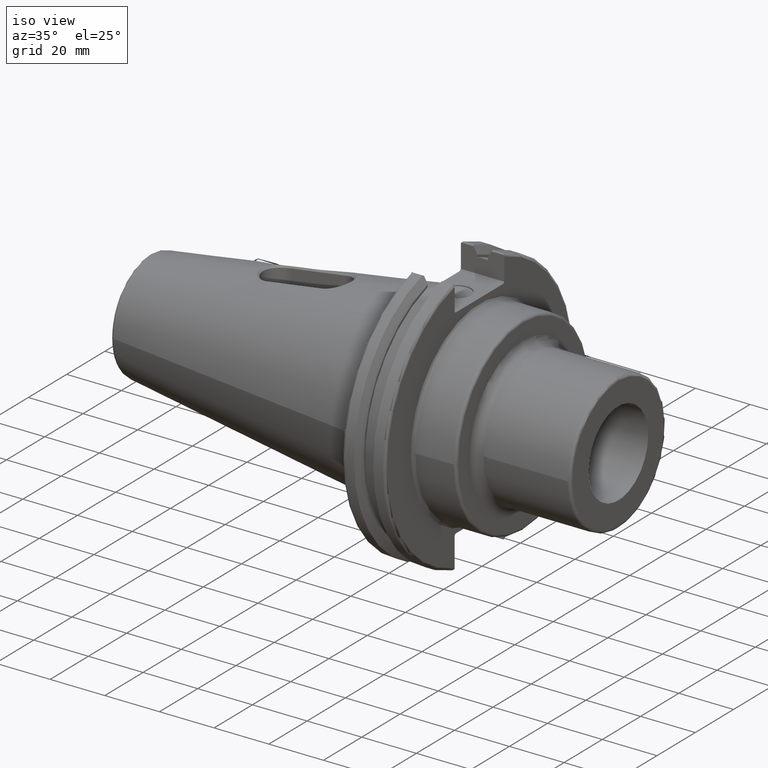
[diagram: clean part render]
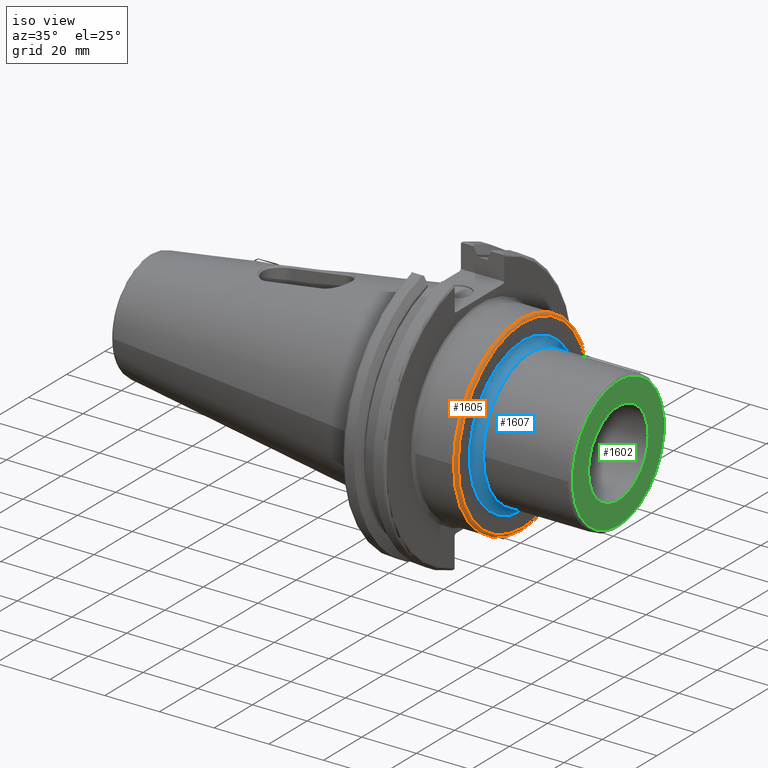
[diagram: same view with three faces highlighted in distinct colors, each labeled with its STEP entity id]
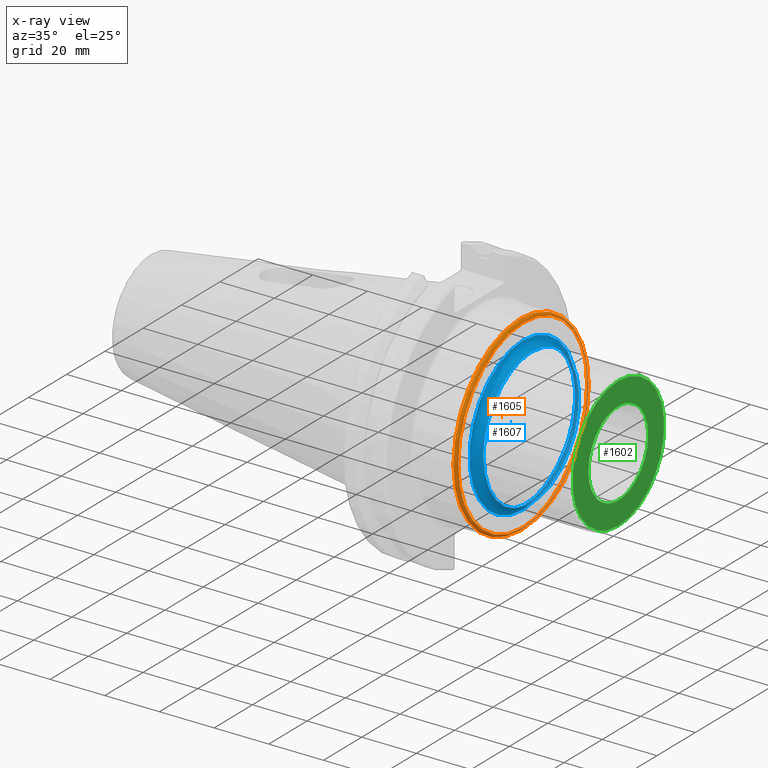
[diagram: x-ray of the same camera — body ghosted, the three highlighted faces saturated]
A machine part, iso view with three faces highlighted in distinct colors.
The next image is the same camera in x-ray (body ghosted, the three faces saturated) — at least one of them is partly hidden behind the body in this view.
Their STEP definitions:

[orange] entity #1605 — the highlighted toroidal blend (fillet) surface has major radius 33.925 mm and minor (blend) radius 1 mm.
#17=TOROIDAL_SURFACE('',#1728,33.925,1.);
#57=CIRCLE('',#1726,34.925);
#58=CIRCLE('',#1727,34.925);
#59=CIRCLE('',#1729,33.925);
#60=CIRCLE('',#1730,1.);
#219=FACE_OUTER_BOUND('',#313,.T.);
#313=EDGE_LOOP('',(#1258,#1259,#1260,#1261,#1262));
#720=VERTEX_POINT('',#3159);
#721=VERTEX_POINT('',#3160);
#722=VERTEX_POINT('',#3165);
#918=EDGE_CURVE('',#720,#721,#57,.T.);
#920=EDGE_CURVE('',#721,#720,#58,.T.);
#921=EDGE_CURVE('',#722,#722,#59,.T.);
#922=EDGE_CURVE('',#722,#721,#60,.T.);
#1258=ORIENTED_EDGE('',*,*,#921,.T.);
#1259=ORIENTED_EDGE('',*,*,#922,.T.);
#1260=ORIENTED_EDGE('',*,*,#920,.T.);
#1261=ORIENTED_EDGE('',*,*,#918,.T.);
#1262=ORIENTED_EDGE('',*,*,#922,.F.);
#1605=ADVANCED_FACE('',(#219),#17,.T.);
#1726=AXIS2_PLACEMENT_3D('',#3161,#1953,#1954);
#1727=AXIS2_PLACEMENT_3D('',#3163,#1956,#1957);
#1728=AXIS2_PLACEMENT_3D('',#3164,#1958,#1959);
#1729=AXIS2_PLACEMENT_3D('',#3166,#1960,#1961);
#1730=AXIS2_PLACEMENT_3D('',#3167,#1962,#1963);
#1953=DIRECTION('center_axis',(1.,0.,0.));
#1954=DIRECTION('ref_axis',(0.,-1.,1.83697019872103E-16));
#1956=DIRECTION('center_axis',(1.,0.,0.));
#1957=DIRECTION('ref_axis',(0.,-1.,1.83697019872103E-16));
#1958=DIRECTION('center_axis',(1.,0.,0.));
#1959=DIRECTION('ref_axis',(0.,0.,-1.));
#1960=DIRECTION('center_axis',(-1.,0.,0.));
#1961=DIRECTION('ref_axis',(0.,-1.,1.83697019872103E-16));
#1962=DIRECTION('center_axis',(0.,-1.,-1.22464679914735E-16));
#1963=DIRECTION('ref_axis',(0.,-1.22464679914735E-16,1.));
#3159=CARTESIAN_POINT('',(34.,-34.925,-4.27707894602213E-15));
#3160=CARTESIAN_POINT('',(34.,-4.27707894602213E-15,34.925));
#3161=CARTESIAN_POINT('Origin',(34.,0.,0.));
#3163=CARTESIAN_POINT('Origin',(34.,0.,0.));
#3164=CARTESIAN_POINT('Origin',(34.,0.,0.));
#3165=CARTESIAN_POINT('',(35.,-4.15461426610739E-15,33.925));
#3166=CARTESIAN_POINT('Origin',(35.,0.,0.));
#3167=CARTESIAN_POINT('Origin',(34.,-4.15461426610739E-15,33.925));

[blue] entity #1607 — the highlighted toroidal blend (fillet) surface has major radius 28 mm and minor (blend) radius 3 mm.
#18=TOROIDAL_SURFACE('',#1733,28.,3.);
#50=CIRCLE('',#1716,25.);
#51=CIRCLE('',#1717,25.);
#61=CIRCLE('',#1732,28.);
#62=CIRCLE('',#1734,3.);
#221=FACE_OUTER_BOUND('',#316,.T.);
#316=EDGE_LOOP('',(#1265,#1266,#1267,#1268,#1269));
#712=VERTEX_POINT('',#3128);
#713=VERTEX_POINT('',#3130);
#723=VERTEX_POINT('',#3169);
#909=EDGE_CURVE('',#713,#712,#50,.T.);
#910=EDGE_CURVE('',#712,#713,#51,.T.);
#923=EDGE_CURVE('',#723,#723,#61,.T.);
#924=EDGE_CURVE('',#723,#713,#62,.T.);
#1265=ORIENTED_EDGE('',*,*,#923,.T.);
#1266=ORIENTED_EDGE('',*,*,#924,.T.);
#1267=ORIENTED_EDGE('',*,*,#909,.T.);
#1268=ORIENTED_EDGE('',*,*,#910,.T.);
#1269=ORIENTED_EDGE('',*,*,#924,.F.);
#1607=ADVANCED_FACE('',(#221),#18,.F.);
#1716=AXIS2_PLACEMENT_3D('',#3131,#1933,#1934);
#1717=AXIS2_PLACEMENT_3D('',#3132,#1935,#1936);
#1732=AXIS2_PLACEMENT_3D('',#3170,#1966,#1967);
#1733=AXIS2_PLACEMENT_3D('',#3171,#1968,#1969);
#1734=AXIS2_PLACEMENT_3D('',#3172,#1970,#1971);
#1933=DIRECTION('center_axis',(-1.,0.,0.));
#1934=DIRECTION('ref_axis',(0.,-1.,1.83697019872103E-16));
#1935=DIRECTION('center_axis',(-1.,0.,0.));
#1936=DIRECTION('ref_axis',(0.,-1.,1.83697019872103E-16));
#1966=DIRECTION('center_axis',(1.,0.,0.));
#1967=DIRECTION('ref_axis',(0.,-1.,1.83697019872103E-16));
#1968=DIRECTION('center_axis',(1.,0.,0.));
#1969=DIRECTION('ref_axis',(0.,0.,-1.));
#1970=DIRECTION('center_axis',(0.,-1.,-1.22464679914735E-16));
#1971=DIRECTION('ref_axis',(0.,-1.22464679914735E-16,1.));
#3128=CARTESIAN_POINT('',(38.,-25.,-3.06161699786838E-15));
#3130=CARTESIAN_POINT('',(38.,-3.06161699786838E-15,25.));
#3131=CARTESIAN_POINT('Origin',(38.,0.,0.));
#3132=CARTESIAN_POINT('Origin',(38.,0.,0.));
#3169=CARTESIAN_POINT('',(35.,-3.42901103761259E-15,28.));
#3170=CARTESIAN_POINT('Origin',(35.,0.,0.));
#3171=CARTESIAN_POINT('Origin',(38.,0.,0.));
#3172=CARTESIAN_POINT('Origin',(38.,-3.42901103761259E-15,28.));

[green] entity #1602 — the highlighted planar face has unit normal (1, 0, 0).
#27=FACE_BOUND('',#310,.T.);
#46=CIRCLE('',#1711,24.);
#52=CIRCLE('',#1719,15.594548589411);
#153=PLANE('',#1718);
#216=FACE_OUTER_BOUND('',#309,.T.);
#309=EDGE_LOOP('',(#1243));
#310=EDGE_LOOP('',(#1244));
#709=VERTEX_POINT('',#3120);
#714=VERTEX_POINT('',#3134);
#904=EDGE_CURVE('',#709,#709,#46,.T.);
#911=EDGE_CURVE('',#714,#714,#52,.T.);
#1243=ORIENTED_EDGE('',*,*,#904,.F.);
#1244=ORIENTED_EDGE('',*,*,#911,.F.);
#1602=ADVANCED_FACE('',(#216,#27),#153,.T.);
#1711=AXIS2_PLACEMENT_3D('',#3121,#1922,#1923);
#1718=AXIS2_PLACEMENT_3D('',#3133,#1937,#1938);
#1719=AXIS2_PLACEMENT_3D('',#3135,#1939,#1940);
#1922=DIRECTION('center_axis',(-1.,0.,0.));
#1923=DIRECTION('ref_axis',(0.,-1.,1.83697019872103E-16));
#1937=DIRECTION('center_axis',(1.,0.,0.));
#1938=DIRECTION('ref_axis',(0.,0.,-1.));
#1939=DIRECTION('center_axis',(1.,0.,0.));
#1940=DIRECTION('ref_axis',(0.,0.,-1.));
#3120=CARTESIAN_POINT('',(69.85,-2.93915231795365E-15,24.));
#3121=CARTESIAN_POINT('Origin',(69.85,0.,0.));
#3133=CARTESIAN_POINT('Origin',(69.85,15.594548589411,0.));
#3134=CARTESIAN_POINT('',(69.85,-15.594548589411,-1.909781401417E-15));
#3135=CARTESIAN_POINT('Origin',(69.85,0.,0.));